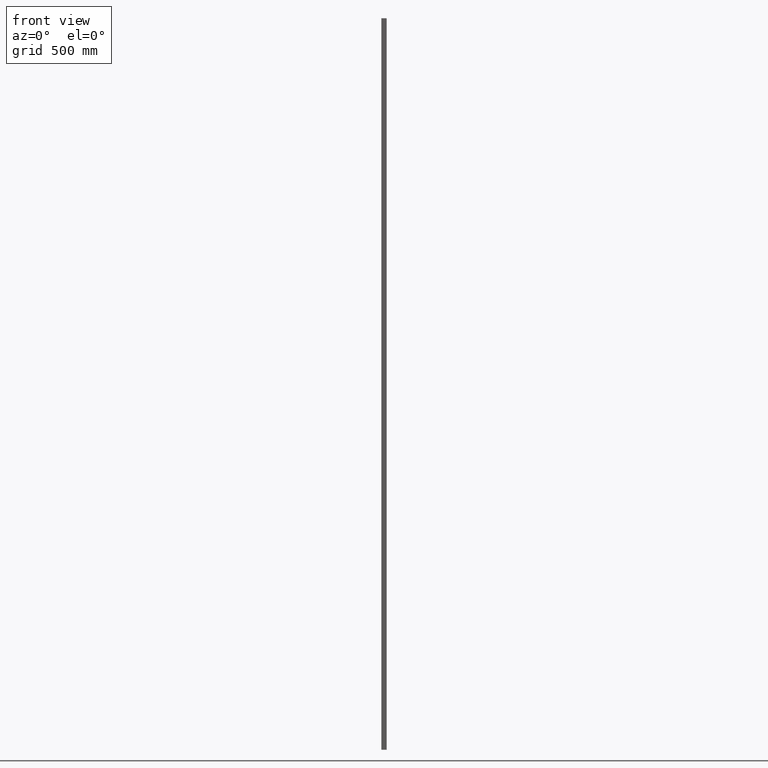
[diagram: clean part render]
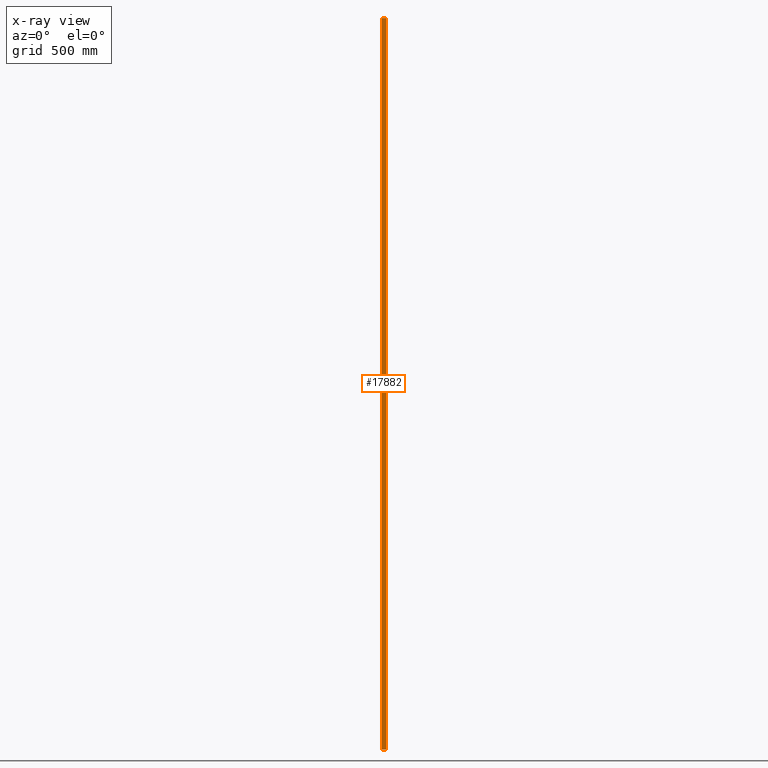
[diagram: x-ray — body ghosted, one internal face saturated and labeled with its STEP entity id]
A machine part, front view, then the same camera in x-ray: the body is ghosted and one INTERNAL B-rep face — a face not visible from any outside direction — is saturated and labeled: STEP entity #17882.
In plain terms, the highlighted planar face has unit normal (0, -1, 0).
Its self-contained STEP definition (entity closure, byte-faithful):
#1156 = VECTOR ( 'NONE', #2932, 1000.000000000000000 ) ;
#1445 = ORIENTED_EDGE ( 'NONE', *, *, #5614, .T. ) ;
#1595 = CARTESIAN_POINT ( 'NONE',  ( -8.549999999999998934, 6.000000000000000000, 1500.000000000000000 ) ) ;
#1647 = LINE ( 'NONE', #11186, #9689 ) ;
#2456 = VERTEX_POINT ( 'NONE', #16073 ) ;
#2810 = CARTESIAN_POINT ( 'NONE',  ( -8.549999999999998934, 6.000000000000000000, 1500.000000000000000 ) ) ;
#2932 = DIRECTION ( 'NONE',  ( -1.000000000000000000, -0.000000000000000000, -0.000000000000000000 ) ) ;
#3443 = AXIS2_PLACEMENT_3D ( 'NONE', #1595, #11571, #12861 ) ;
#3926 = FACE_OUTER_BOUND ( 'NONE', #16290, .T. ) ;
#4169 = DIRECTION ( 'NONE',  ( -1.000000000000000000, -0.000000000000000000, -0.000000000000000000 ) ) ;
#4758 = VERTEX_POINT ( 'NONE', #18320 ) ;
#5304 = EDGE_CURVE ( 'NONE', #14509, #13800, #17819, .T. ) ;
#5484 = ORIENTED_EDGE ( 'NONE', *, *, #5304, .F. ) ;
#5614 = EDGE_CURVE ( 'NONE', #2456, #13800, #10961, .T. ) ;
#8088 = LINE ( 'NONE', #2810, #1156 ) ;
#9689 = VECTOR ( 'NONE', #16823, 1000.000000000000000 ) ;
#10663 = EDGE_CURVE ( 'NONE', #4758, #2456, #1647, .T. ) ;
#10961 = LINE ( 'NONE', #16707, #12498 ) ;
#11031 = DIRECTION ( 'NONE',  ( -0.000000000000000000, -0.000000000000000000, -1.000000000000000000 ) ) ;
#11186 = CARTESIAN_POINT ( 'NONE',  ( 8.549999999999998934, 6.000000000000000000, 1500.000000000000000 ) ) ;
#11519 = ORIENTED_EDGE ( 'NONE', *, *, #10663, .T. ) ;
#11571 = DIRECTION ( 'NONE',  ( 0.000000000000000000, -1.000000000000000000, 0.000000000000000000 ) ) ;
#12498 = VECTOR ( 'NONE', #4169, 1000.000000000000000 ) ;
#12731 = ORIENTED_EDGE ( 'NONE', *, *, #13031, .F. ) ;
#12861 = DIRECTION ( 'NONE',  ( 0.000000000000000000, -0.000000000000000000, -1.000000000000000000 ) ) ;
#13031 = EDGE_CURVE ( 'NONE', #4758, #14509, #8088, .T. ) ;
#13800 = VERTEX_POINT ( 'NONE', #16087 ) ;
#14509 = VERTEX_POINT ( 'NONE', #17126 ) ;
#16073 = CARTESIAN_POINT ( 'NONE',  ( 8.549999999999998934, 6.000000000000000000, -1500.000000000000000 ) ) ;
#16087 = CARTESIAN_POINT ( 'NONE',  ( -8.549999999999998934, 6.000000000000000000, -1500.000000000000000 ) ) ;
#16290 = EDGE_LOOP ( 'NONE', ( #1445, #5484, #12731, #11519 ) ) ;
#16707 = CARTESIAN_POINT ( 'NONE',  ( -8.549999999999998934, 6.000000000000000000, -1500.000000000000000 ) ) ;
#16727 = CARTESIAN_POINT ( 'NONE',  ( -8.549999999999998934, 6.000000000000000000, 1500.000000000000000 ) ) ;
#16823 = DIRECTION ( 'NONE',  ( -0.000000000000000000, -0.000000000000000000, -1.000000000000000000 ) ) ;
#17126 = CARTESIAN_POINT ( 'NONE',  ( -8.549999999999998934, 6.000000000000000000, 1500.000000000000000 ) ) ;
#17222 = PLANE ( 'NONE',  #3443 ) ;
#17819 = LINE ( 'NONE', #16727, #18046 ) ;
#17882 = ADVANCED_FACE ( 'NONE', ( #3926 ), #17222, .F. ) ;
#18046 = VECTOR ( 'NONE', #11031, 1000.000000000000000 ) ;
#18320 = CARTESIAN_POINT ( 'NONE',  ( 8.549999999999998934, 6.000000000000000000, 1500.000000000000000 ) ) ;